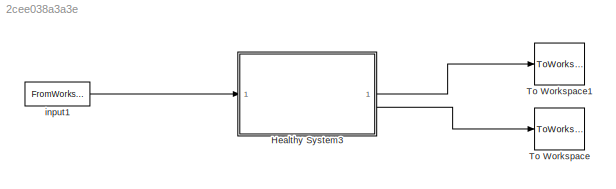
MODEL slx_2cee038a3a3e
KIND model
CONFIG AbsTol = auto
CONFIG EnableMultiTasking = off
CONFIG FixedStep = 0.01
CONFIG MaxStep = auto
CONFIG MinStep = auto
CONFIG RelTol = 1e-4
CONFIG SampleTimeConstraint = Unconstrained
CONFIG SolverName = ode4
CONFIG StartTime = 0.0
CONFIG StopTime = t_final
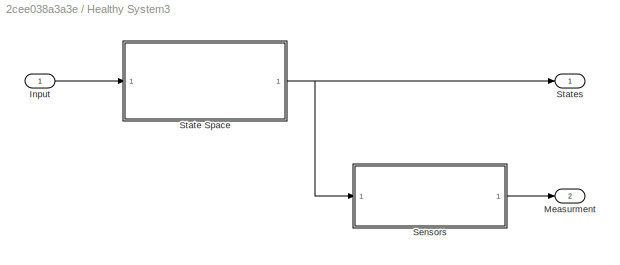
BLOCK [SubSystem] Healthy System3
BLOCK [Inport] Healthy System3/Input 
BLOCK [Outport] Healthy System3/Measurment
  Port = 2
  VectorParamsAs1DForOutWhenUnconnected = off
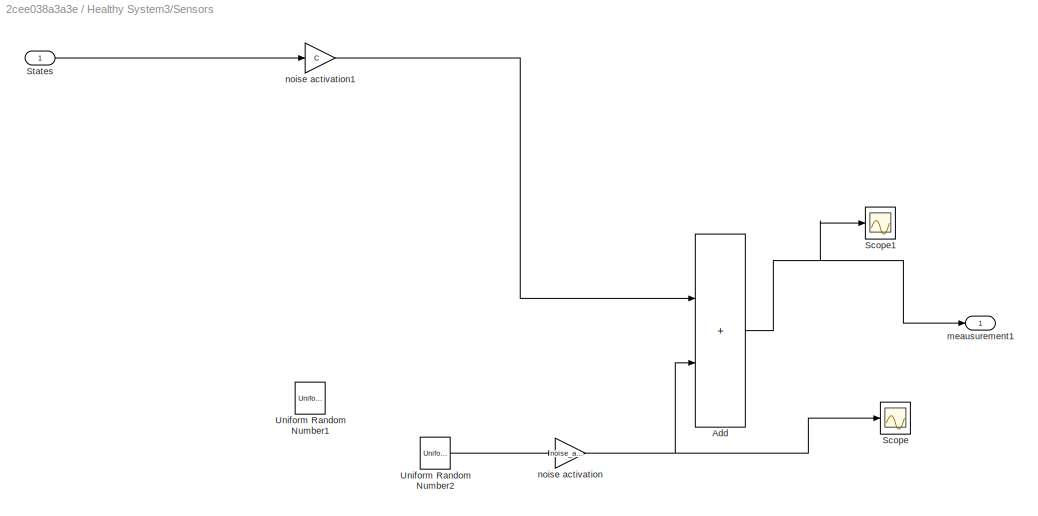
BLOCK [SubSystem] Healthy System3/Sensors
BLOCK [Sum] Healthy System3/Sensors/Add
  IconShape = rectangular
BLOCK [Scope] Healthy System3/Sensors/Scope
  Floating = off
  NumInputPorts = 1
  ScopeSpecificationString = Simulink.scopes.TimeScopeBlockCfg('CurrentConfiguration', extmgr.ConfigurationSet(extmgr.Configuration('Core','General UI',true),extmgr.Configuration('Core','Source UI',true),extmgr.Configuration('Sources','WiredSimulink',true,'DataLoggingVariableName','ScopeData1'),extmgr.Configuration('Visuals','Time Domain',true,'SerializedDisplays',{struct('MinYLimReal','-0.00062','MaxYLimReal','0.00062','YLab...<+1470ch>
BLOCK [Scope] Healthy System3/Sensors/Scope1
  Floating = off
  NumInputPorts = 1
  ScopeSpecificationString = Simulink.scopes.TimeScopeBlockCfg('CurrentConfiguration', extmgr.ConfigurationSet(extmgr.Configuration('Core','General UI',true),extmgr.Configuration('Core','Source UI',true),extmgr.Configuration('Sources','WiredSimulink',true,'DataLoggingVariableName','ScopeData2'),extmgr.Configuration('Visuals','Time Domain',true,'SerializedDisplays',{struct('MinYLimReal','-1.70292','MaxYLimReal','2.38525','YLab...<+1461ch>
BLOCK [Inport] Healthy System3/Sensors/States
BLOCK [UniformRandomNumber] Healthy System3/Sensors/Uniform Random Number1
  Commented = on
  Maximum = [0.1; 0.1;0.1;.1]*1e-3
  Minimum = -[0.1; 0.1;0.1;0.1]*1e-3
  SampleTime = 1e-2
BLOCK [UniformRandomNumber] Healthy System3/Sensors/Uniform Random Number2
  Maximum = [0.005;0.005;0.04;0.04]/4
  Minimum = -[0.005;0.005;0.04;0.04]/4
BLOCK [Outport] Healthy System3/Sensors/meausurement1
  VectorParamsAs1DForOutWhenUnconnected = off
BLOCK [Gain] Healthy System3/Sensors/noise activation
  Gain = noise_activation
BLOCK [Gain] Healthy System3/Sensors/noise activation1
  Gain = C
  Multiplication = Matrix(K*u)
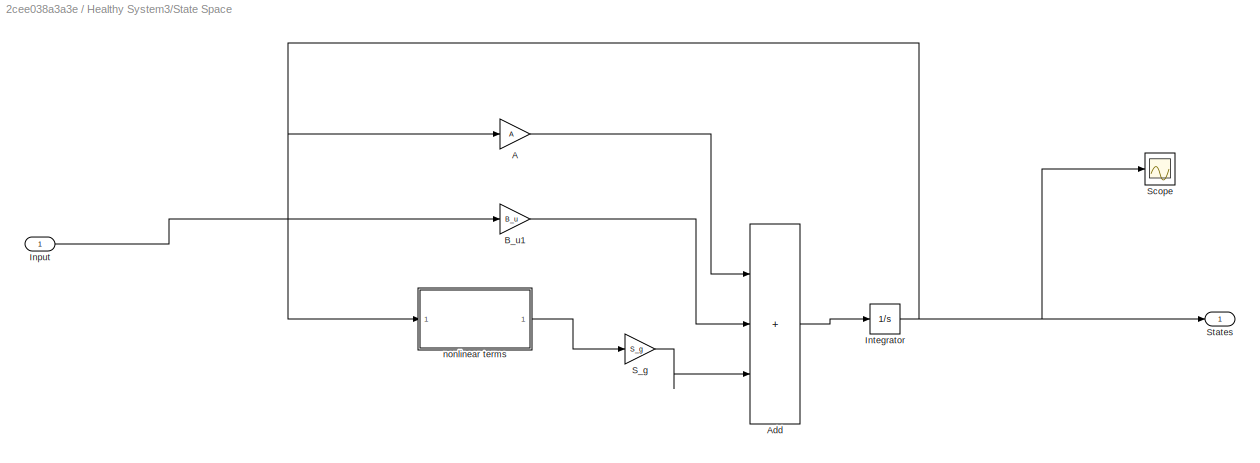
BLOCK [SubSystem] Healthy System3/State Space
BLOCK [Inport] Healthy System3/State Space/ Input
BLOCK [Gain] Healthy System3/State Space/A
  Gain = A
  Multiplication = Matrix(K*u)
BLOCK [Sum] Healthy System3/State Space/Add
  IconShape = rectangular
  Inputs = +++
BLOCK [Gain] Healthy System3/State Space/B_u1
  Gain = B_u
  Multiplication = Matrix(K*u)
BLOCK [Integrator] Healthy System3/State Space/Integrator
  InitialCondition = 1e-3*ones(n,1)
BLOCK [Gain] Healthy System3/State Space/S_g
  Gain = S_g
  Multiplication = Matrix(K*u)
BLOCK [Scope] Healthy System3/State Space/Scope
  Floating = off
  NumInputPorts = 1
  ScopeSpecificationString = Simulink.scopes.TimeScopeBlockCfg('CurrentConfiguration', extmgr.ConfigurationSet(extmgr.Configuration('Core','General UI',true),extmgr.Configuration('Core','Source UI',true),extmgr.Configuration('Sources','WiredSimulink',true,'DataLoggingVariableName','ScopeData1'),extmgr.Configuration('Visuals','Time Domain',true,'SerializedDisplays',{struct('MinYLimReal','-7.54229','MaxYLimReal','7.65427','YLab...<+1471ch>
BLOCK [Outport] Healthy System3/State Space/States
  VectorParamsAs1DForOutWhenUnconnected = off
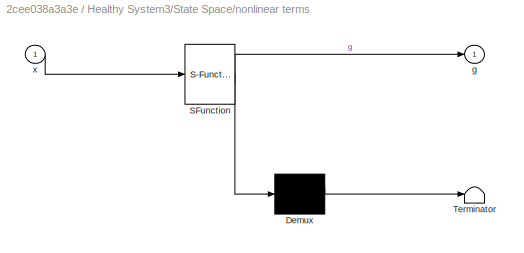
BLOCK [SubSystem] Healthy System3/State Space/nonlinear terms 
  ErrorFcn = Stateflow.Translate.translate
  PermitHierarchicalResolution = ExplicitOnly
  SFBlockType = MATLAB Function
  TreatAsAtomicUnit = on
BLOCK [Demux] Healthy System3/State Space/nonlinear terms / Demux 
  Outputs = 1
BLOCK [S-Function] Healthy System3/State Space/nonlinear terms / SFunction 
  EnableBusSupport = on
  FunctionName = sf_sfun
  PortCounts = [1 2]
  SFcnIsStateOwnerBlock = off
  SFunctionDeploymentMode = off
  Tag = Stateflow S-Function 1
BLOCK [Terminator] Healthy System3/State Space/nonlinear terms / Terminator 
BLOCK [Outport] Healthy System3/State Space/nonlinear terms /g
  VectorParamsAs1DForOutWhenUnconnected = off
BLOCK [Inport] Healthy System3/State Space/nonlinear terms /x
BLOCK [Outport] Healthy System3/States
  VectorParamsAs1DForOutWhenUnconnected = off
BLOCK [ToWorkspace] To Workspace
  MaxDataPoints = inf
  SampleTime = -1
  Save2DSignal = 2-D array (concatenate along first dimension)
  VariableName = y
BLOCK [ToWorkspace] To Workspace1
  MaxDataPoints = inf
  SampleTime = -1
  Save2DSignal = 2-D array (concatenate along first dimension)
  VariableName = x
BLOCK [FromWorkspace] input1
  VariableName = input
LINE Healthy System3/Input :1 -> Healthy System3/State Space:1
NET Healthy System3/Sensors/Add:1 -> Healthy System3/Sensors/Scope1:1, Healthy System3/Sensors/meausurement1:1
LINE Healthy System3/Sensors/States:1 -> Healthy System3/Sensors/noise activation1:1
LINE Healthy System3/Sensors/Uniform Random Number2:1 -> Healthy System3/Sensors/noise activation:1
LINE Healthy System3/Sensors/noise activation1:1 -> Healthy System3/Sensors/Add:1
NET Healthy System3/Sensors/noise activation:1 -> Healthy System3/Sensors/Add:2, Healthy System3/Sensors/Scope:1
LINE Healthy System3/Sensors:1 -> Healthy System3/Measurment:1
LINE Healthy System3/State Space/ Input:1 -> Healthy System3/State Space/B_u1:1
LINE Healthy System3/State Space/A:1 -> Healthy System3/State Space/Add:1
LINE Healthy System3/State Space/Add:1 -> Healthy System3/State Space/Integrator:1
LINE Healthy System3/State Space/B_u1:1 -> Healthy System3/State Space/Add:2
NET Healthy System3/State Space/Integrator:1 -> Healthy System3/State Space/A:1, Healthy System3/State Space/Scope:1, Healthy System3/State Space/States:1, Healthy System3/State Space/nonlinear terms :1
LINE Healthy System3/State Space/S_g:1 -> Healthy System3/State Space/Add:3
LINE Healthy System3/State Space/nonlinear terms :1 -> Healthy System3/State Space/S_g:1
NET Healthy System3/State Space:1 -> Healthy System3/Sensors:1, Healthy System3/States:1
LINE Healthy System3:1 -> To Workspace1:1
LINE Healthy System3:2 -> To Workspace:1
LINE input1:1 -> Healthy System3:1
note: NET lines group one-source signal fan-out (src -> all destinations, sorted); 1:1 wires keep LINE
CHART Healthy System3/State Space/nonlinear terms  states=1 transitions=1
  STATE_LABEL 'eML_blk_kernel()'
  STATE_LABEL 'SCRIPT:\nfunction g = g(x)\n\nc1      = 710.70/1000*1e-3;\nV_g   = [zeros(1,4) 10 0 -10  0\n         zeros(1,4) 0 10  0 -10]; \n\nx_g = V_g*x;\n\ng = c1*0.2*tanh(x_g);\n\n\nend\n\n'
CHART  states=0 transitions=0
